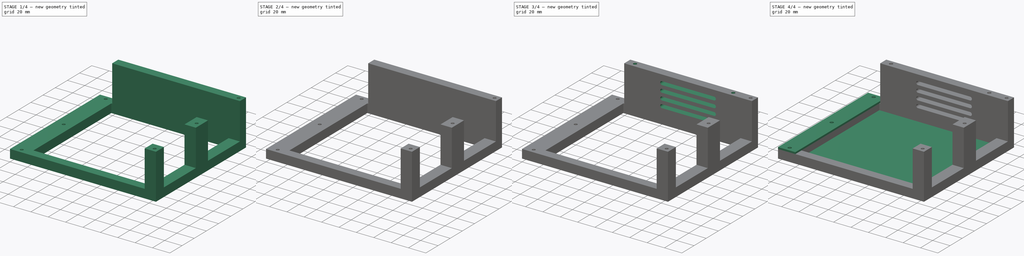
[diagram: build sequence overview — one tinted view per stage of 4, left to right]
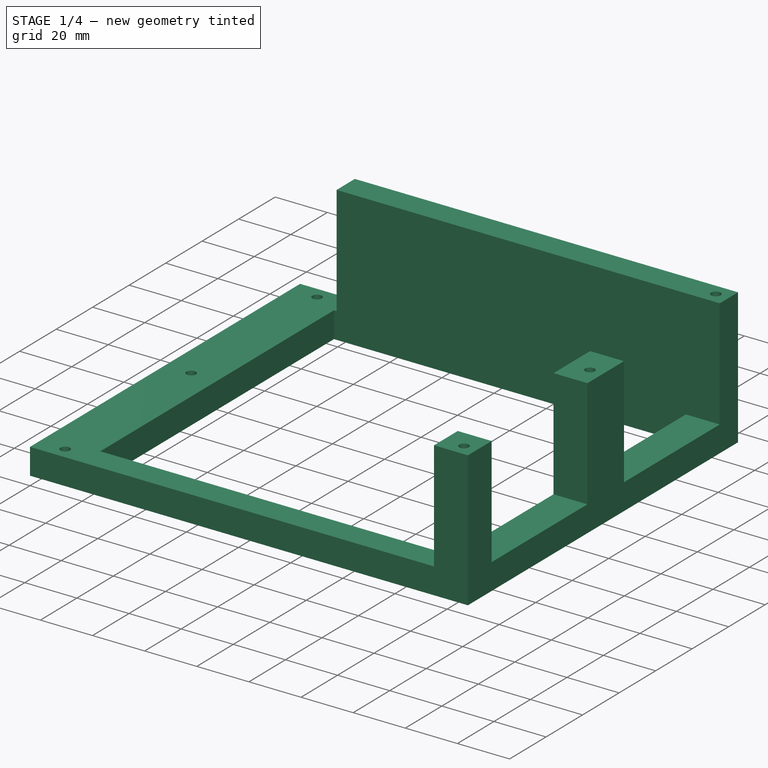
[diagram: stage 1 of 4 — iso view after this stage's code; geometry added in this stage tinted green]
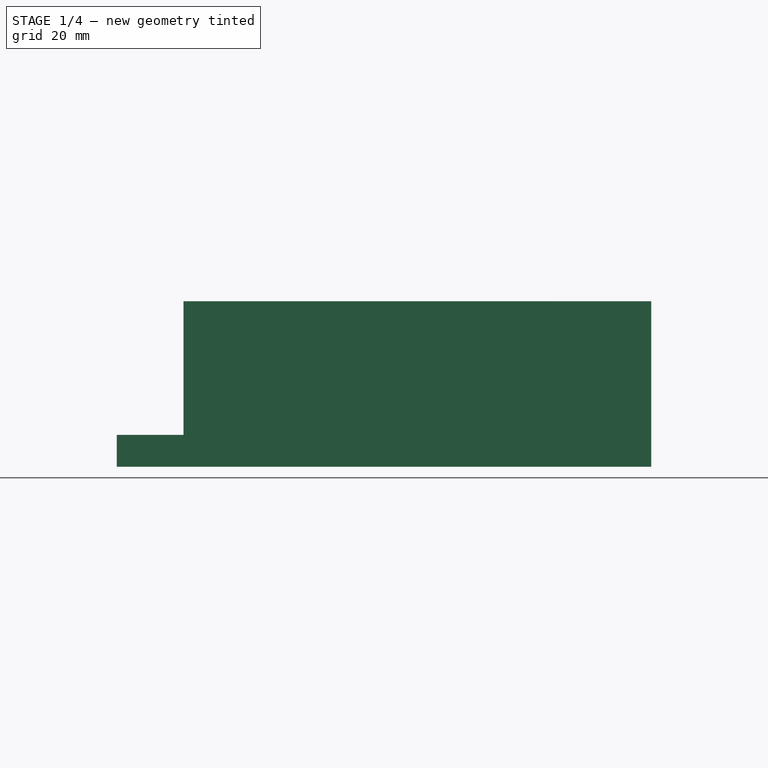
[diagram: stage 1 of 4 — front view after this stage's code; geometry added in this stage tinted green]
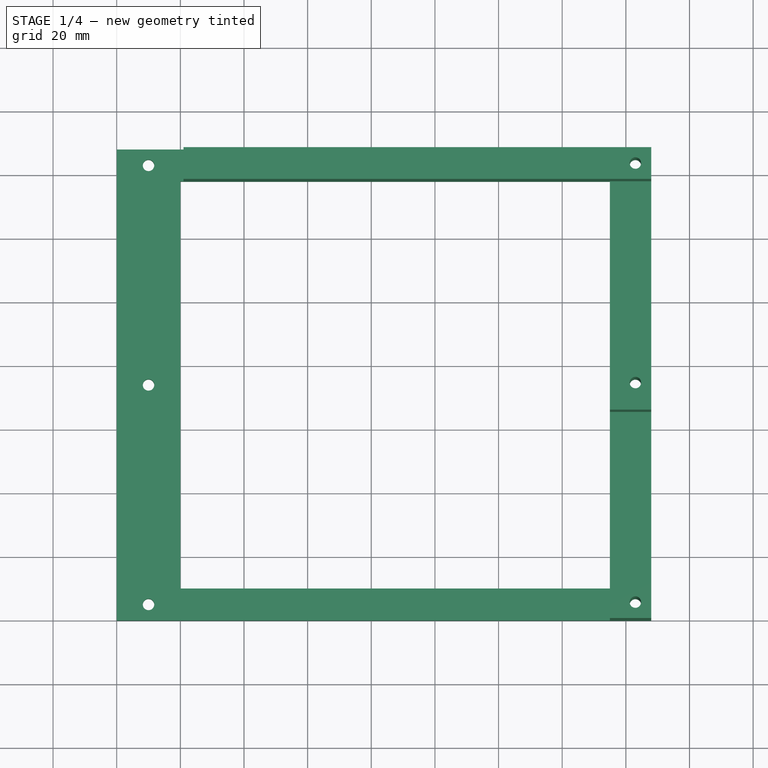
[diagram: stage 1 of 4 — top view after this stage's code; geometry added in this stage tinted green]
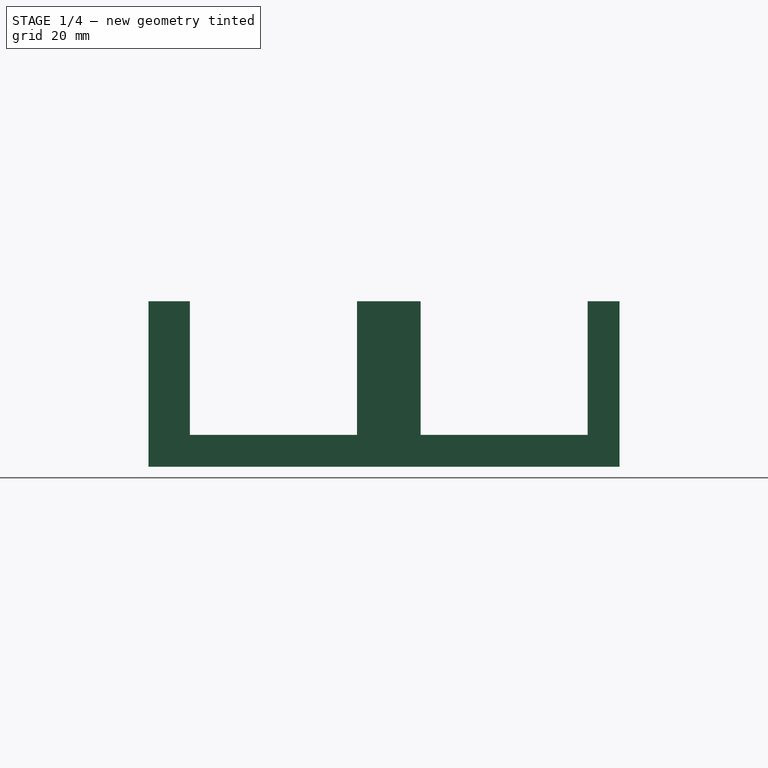
[diagram: stage 1 of 4 — right view after this stage's code; geometry added in this stage tinted green]
FCSTD DOCUMENT  (FreeCAD 0.19R24291 (Git))
Label: lower case enclosure
License: All rights reserved
LicenseURL: http://en.wikipedia.org/wiki/All_rights_reserved
objects: Sketcher::SketchObject×11, PartDesign::Pocket×6, PartDesign::Pad×5, PartDesign::Body×3
note: 36 computed .brp shape members not serialized (recipe doc carries the construction recipe); baked Part::Feature solids carry a one-line shape summary decoded from their .brp

FEATURE [Sketcher::SketchObject] Sketch
  FullyConstrained = true
  MapMode = 5
  Support = -> [XY_Plane]
  sketch-geometry (8):
    g0: LineSegment StartX=0 StartY=0 StartZ=0 EndX=168 EndY=0 EndZ=0
    g1: LineSegment StartX=168 StartY=0 StartZ=0 EndX=168 EndY=148 EndZ=0
    g2: LineSegment StartX=168 StartY=148 StartZ=0 EndX=0 EndY=148 EndZ=0
    g3: LineSegment StartX=0 StartY=148 StartZ=0 EndX=0 EndY=0 EndZ=0
    g4: LineSegment StartX=20 StartY=138 StartZ=0 EndX=155 EndY=138 EndZ=0
    g5: LineSegment StartX=155 StartY=138 StartZ=0 EndX=155 EndY=10 EndZ=0
    g6: LineSegment StartX=155 StartY=10 StartZ=0 EndX=20 EndY=10 EndZ=0
    g7: LineSegment StartX=20 StartY=10 StartZ=0 EndX=20 EndY=138 EndZ=0
  constraints (23):
    c: Coincident(g0,g1)
    c: Coincident(g1,g2)
    c: Coincident(g2,g3)
    c: Coincident(g3,g0)
    c: Horizontal(g0)
    c: Horizontal(g2)
    c: Vertical(g1)
    c: Vertical(g3)
    c: Coincident(g0,g-1)
    c: DistanceX(g0,g0) = 168
    c: DistanceY(g1,g1) = 148
    c: Coincident(g4,g5)
    c: Coincident(g5,g6)
    c: Coincident(g6,g7)
    c: Coincident(g7,g4)
    c: Horizontal(g4)
    c: Horizontal(g6)
    c: Vertical(g5)
    c: Vertical(g7)
    c: DistanceX(g5,g0) = 13
    c: DistanceY(g0,g5) = 10
    c: DistanceY(g4,g1) = 10
    c: DistanceX(g0,g6) = 20
FEATURE [PartDesign::Pad] Pad
  Direction = (1,1,1)
  Length = 10
  Length2 = 100
  Profile = -> Sketch
  Type = 0
FEATURE [Sketcher::SketchObject] Sketch001
  ExternalGeometry = -> [Pad]
  FullyConstrained = true
  MapMode = 5
  Placement = pos=(0,0,10) rot=(0,0,1;0rad)
  Support = -> [Pad]
  sketch-geometry (12):
    g0: LineSegment StartX=168 StartY=148 StartZ=0 EndX=21 EndY=148 EndZ=0
    g1: LineSegment StartX=21 StartY=148 StartZ=0 EndX=21 EndY=138 EndZ=0
    g2: LineSegment StartX=21 StartY=138 StartZ=0 EndX=168 EndY=138 EndZ=0
    g3: LineSegment StartX=168 StartY=138 StartZ=0 EndX=168 EndY=148 EndZ=0
    g4: LineSegment StartX=168 StartY=0 StartZ=0 EndX=155 EndY=0 EndZ=0
    g5: LineSegment StartX=155 StartY=0 StartZ=0 EndX=155 EndY=13 EndZ=0
    g6: LineSegment StartX=155 StartY=13 StartZ=0 EndX=168 EndY=13 EndZ=0
    g7: LineSegment StartX=168 StartY=13 StartZ=0 EndX=168 EndY=0 EndZ=0
    g8: LineSegment StartX=168 StartY=85.5 StartZ=0 EndX=155 EndY=85.5 EndZ=0
    g9: LineSegment StartX=155 StartY=85.5 StartZ=0 EndX=155 EndY=65.5 EndZ=0
    g10: LineSegment StartX=155 StartY=65.5 StartZ=0 EndX=168 EndY=65.5 EndZ=0
    g11: LineSegment StartX=168 StartY=65.5 StartZ=0 EndX=168 EndY=85.5 EndZ=0
  constraints (34):
    c: Coincident(g0,g1)
    c: Coincident(g1,g2)
    c: Coincident(g2,g3)
    c: Coincident(g3,g0)
    c: Horizontal(g0)
    c: Horizontal(g2)
    c: Vertical(g1)
    c: Vertical(g3)
    c: Coincident(g0,g-5)
    c: PointOnObject(g1,g-3)
    c: DistanceX(g0,g0) = 147
    c: Coincident(g4,g5)
    c: Coincident(g5,g6)
    c: Coincident(g6,g7)
    c: Coincident(g7,g4)
    c: Horizontal(g4)
    c: Horizontal(g6)
    c: Vertical(g5)
    c: Vertical(g7)
    c: Coincident(g4,g-5)
    c: PointOnObject(g-4,g5)
    c: DistanceY(g7,g7) = 13
    c: Coincident(g8,g9)
    c: Coincident(g9,g10)
    c: Coincident(g10,g11)
    c: Coincident(g11,g8)
    c: Horizontal(g8)
    c: Horizontal(g10)
    c: Vertical(g9)
    c: Vertical(g11)
    c: PointOnObject(g8,g-5)
    c: PointOnObject(g9,g-6)
    c: DistanceY(g11,g11) = 20
    c: DistanceY(g6,g10) = 52.5
FEATURE [PartDesign::Pad] Pad001
  BaseFeature = -> Pad
  Direction = (1,1,1)
  Length = 42
  Length2 = 100
  Profile = -> Sketch001
  Type = 0
FEATURE [Sketcher::SketchObject] Sketch002
  ExternalGeometry = -> [Pad001]
  FullyConstrained = true
  MapMode = 5
  Placement = pos=(0,0,0) rot=(1,0,0;3.14159rad)
  Support = -> [Pad001]
  sketch-geometry (6):
    g0: Circle CenterX=10 CenterY=-143 CenterZ=0 NormalX=0 NormalY=0 NormalZ=1 AngleXU=0 Radius=1.8
    g1: Circle CenterX=10 CenterY=-74 CenterZ=0 NormalX=0 NormalY=0 NormalZ=1 AngleXU=0 Radius=1.8
    g2: Circle CenterX=10 CenterY=-5 CenterZ=0 NormalX=0 NormalY=0 NormalZ=1 AngleXU=0 Radius=1.8
    g3: Circle CenterX=163 CenterY=-143 CenterZ=0 NormalX=0 NormalY=0 NormalZ=1 AngleXU=0 Radius=1.8
    g4: Circle CenterX=163 CenterY=-74 CenterZ=0 NormalX=0 NormalY=0 NormalZ=1 AngleXU=0 Radius=1.8
    g5: Circle CenterX=163 CenterY=-5 CenterZ=0 NormalX=0 NormalY=0 NormalZ=1 AngleXU=0 Radius=1.8
  constraints (16):
    c: Radius(g0) = 1.8
    c: DistanceY(g-3,g0) = 5
    c: DistanceX(g-3,g0) = 10
    c: Equal(g0,g1) = 1.8
    c: Equal(g0,g2) = 1.8
    c: DistanceY(g2,g-1) = 5
    c: Vertical(g0,g1)
    c: Symmetric(g0,g2,g1)
    c: Equal(g0,g3) = 1.8
    c: Equal(g3,g4) = 1.8
    c: Equal(g3,g5) = 1.8
    c: Vertical(g3,g4)
    c: Symmetric(g3,g5,g4)
    c: DistanceY(g5,g-4) = 5
    c: DistanceX(g5,g-4) = 5
    c: DistanceY(g-4,g3) = 5
FEATURE [PartDesign::Pocket] Pocket
  BaseFeature = -> Pad001
  Length = 55
  Length2 = 100
  Profile = -> Sketch002
  Type = 0
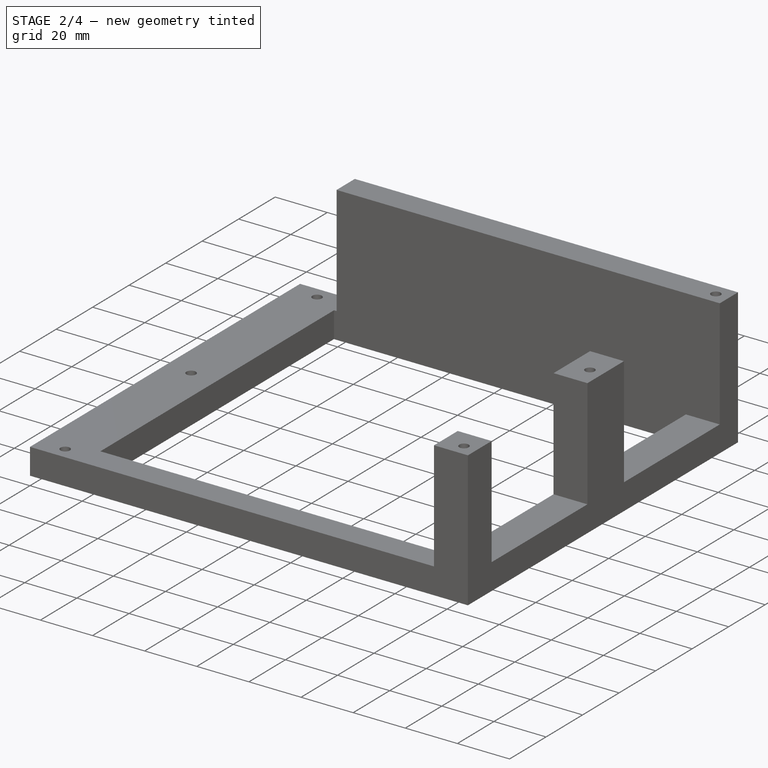
[diagram: stage 2 of 4 — iso view after this stage's code; geometry added in this stage tinted green]
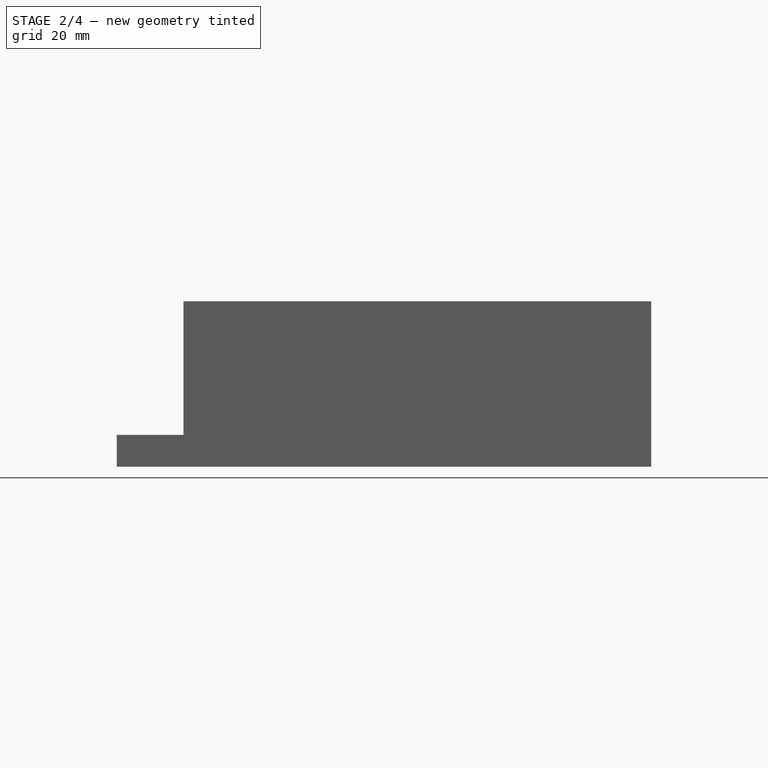
[diagram: stage 2 of 4 — front view after this stage's code; geometry added in this stage tinted green]
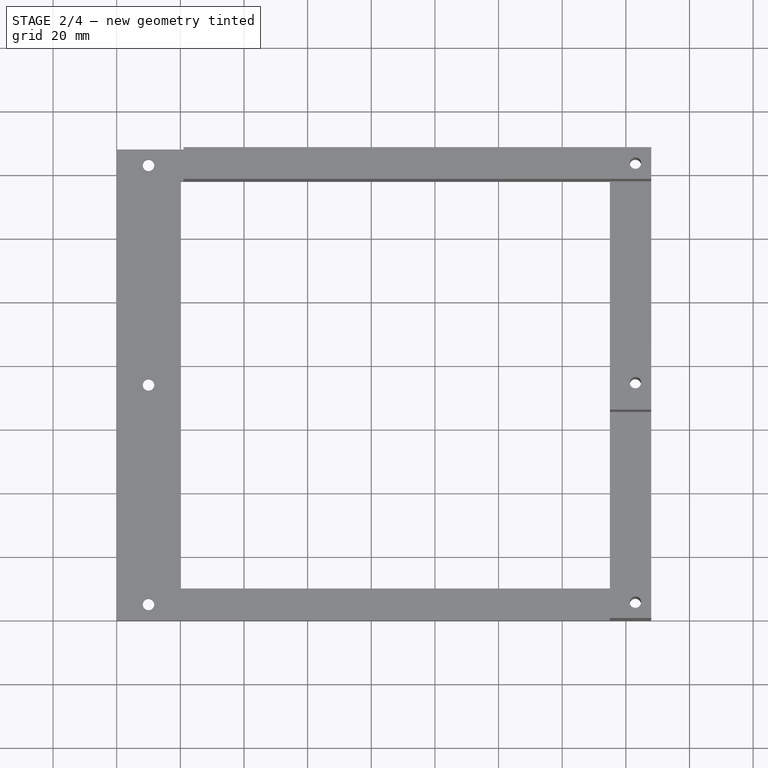
[diagram: stage 2 of 4 — top view after this stage's code; geometry added in this stage tinted green]
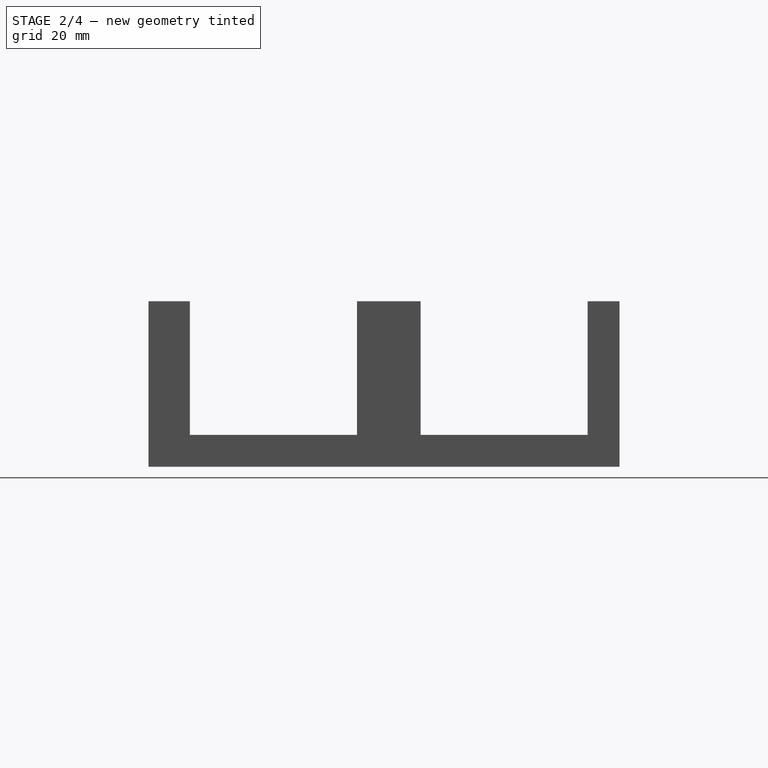
[diagram: stage 2 of 4 — right view after this stage's code; geometry added in this stage tinted green]
FEATURE [Sketcher::SketchObject] Sketch003
  ExternalGeometry = -> [Pocket]
  FullyConstrained = true
  MapMode = 5
  Placement = pos=(0,0,0) rot=(1,0,0;3.14159rad)
  Support = -> [Pocket]
  sketch-geometry (3):
    g0: Circle CenterX=10 CenterY=-5 CenterZ=0 NormalX=0 NormalY=0 NormalZ=1 AngleXU=0 Radius=3
    g1: Circle CenterX=10 CenterY=-74 CenterZ=0 NormalX=0 NormalY=0 NormalZ=1 AngleXU=0 Radius=3
    g2: Circle CenterX=10 CenterY=-143 CenterZ=0 NormalX=0 NormalY=0 NormalZ=1 AngleXU=0 Radius=3
  constraints (6):
    c: Coincident(g0,g-3)
    c: Coincident(g1,g-4)
    c: Coincident(g2,g-5)
    c: Radius(g2) = 3
    c: Equal(g2,g1)
    c: Equal(g1,g0)
FEATURE [PartDesign::Pocket] Pocket001
  BaseFeature = -> Pocket
  Length = 4
  Length2 = 100
  Profile = -> Sketch003
  Type = 0
FEATURE [Sketcher::SketchObject] Sketch004
  ExternalGeometry = -> [Pocket001]
  FullyConstrained = true
  MapMode = 5
  Placement = pos=(0,0,0) rot=(1,0,0;3.14159rad)
  Support = -> [Pocket001]
  sketch-geometry (3):
    g0: Circle CenterX=163 CenterY=-5 CenterZ=0 NormalX=0 NormalY=0 NormalZ=1 AngleXU=0 Radius=3
    g1: Circle CenterX=163 CenterY=-74 CenterZ=0 NormalX=0 NormalY=0 NormalZ=1 AngleXU=0 Radius=3
    g2: Circle CenterX=163 CenterY=-143 CenterZ=0 NormalX=0 NormalY=0 NormalZ=1 AngleXU=0 Radius=3
  constraints (6):
    c: Coincident(g0,g-3)
    c: Coincident(g1,g-4)
    c: Coincident(g2,g-5)
    c: Radius(g0) = 3
    c: Equal(g0,g1)
    c: Equal(g1,g2)
FEATURE [PartDesign::Pocket] Pocket002
  BaseFeature = -> Pocket001
  Length = 6
  Length2 = 100
  Profile = -> Sketch004
  Type = 0
FEATURE [Sketcher::SketchObject] Sketch005
  ExternalGeometry = -> [Pocket002]
  FullyConstrained = true
  MapMode = 5
  Placement = pos=(0,0,0) rot=(1,0,0;3.14159rad)
  Support = -> [Pocket002]
  sketch-geometry (4):
    g0: Circle CenterX=10 CenterY=-25 CenterZ=0 NormalX=0 NormalY=0 NormalZ=1 AngleXU=0 Radius=2
    g1: Circle CenterX=163 CenterY=-25 CenterZ=0 NormalX=0 NormalY=0 NormalZ=1 AngleXU=0 Radius=2
    g2: Circle CenterX=10 CenterY=-123 CenterZ=0 NormalX=0 NormalY=0 NormalZ=1 AngleXU=0 Radius=2
    g3: Circle CenterX=163 CenterY=-123 CenterZ=0 NormalX=0 NormalY=0 NormalZ=1 AngleXU=0 Radius=2
  constraints (12):
    c: Vertical(g-3,g0)
    c: Radius(g0) = 2
    c: DistanceY(g0,g-3) = 20
    c: Equal(g0,g1) = 2
    c: Equal(g0,g2) = 2
    c: Equal(g0,g3) = 2
    c: Vertical(g-4,g1)
    c: Vertical(g1,g3)
    c: Vertical(g-3,g2)
    c: DistanceY(g-6,g2) = 20
    c: Horizontal(g2,g3)
    c: Horizontal(g0,g1)
FEATURE [PartDesign::Pocket] Pocket003
  BaseFeature = -> Pocket002
  Length = 7
  Length2 = 100
  Profile = -> Sketch005
  Type = 0
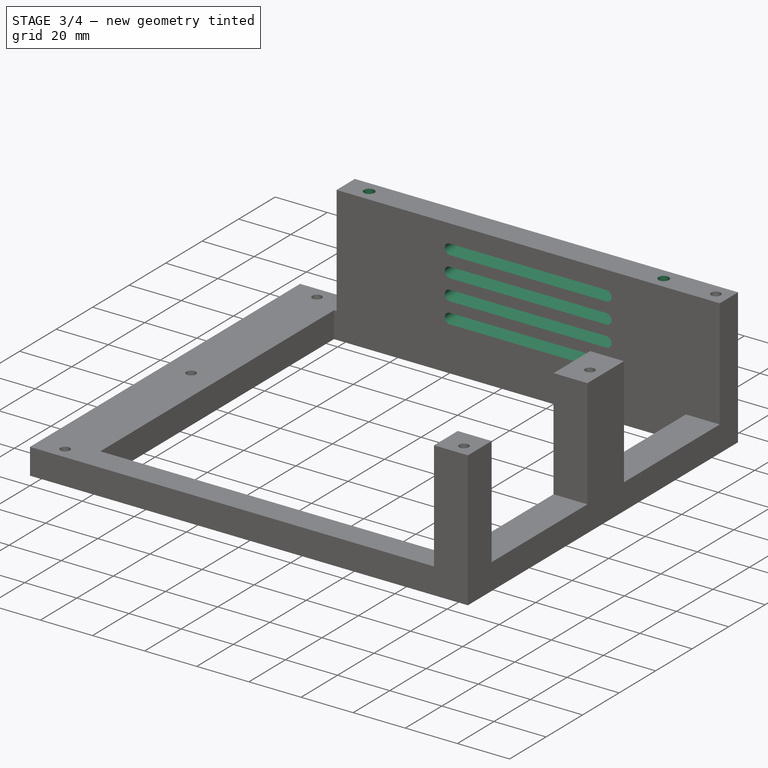
[diagram: stage 3 of 4 — iso view after this stage's code; geometry added in this stage tinted green]
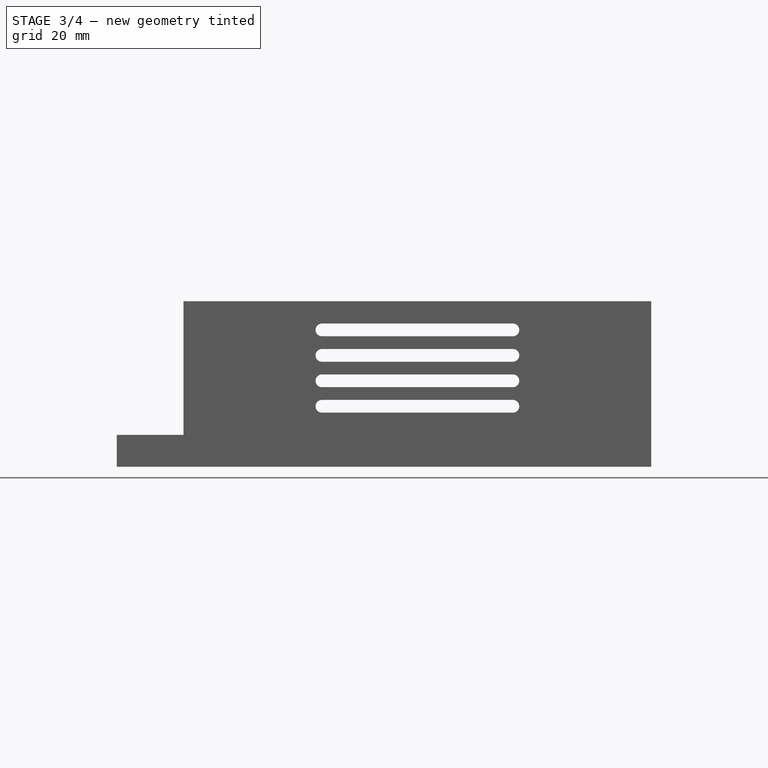
[diagram: stage 3 of 4 — front view after this stage's code; geometry added in this stage tinted green]
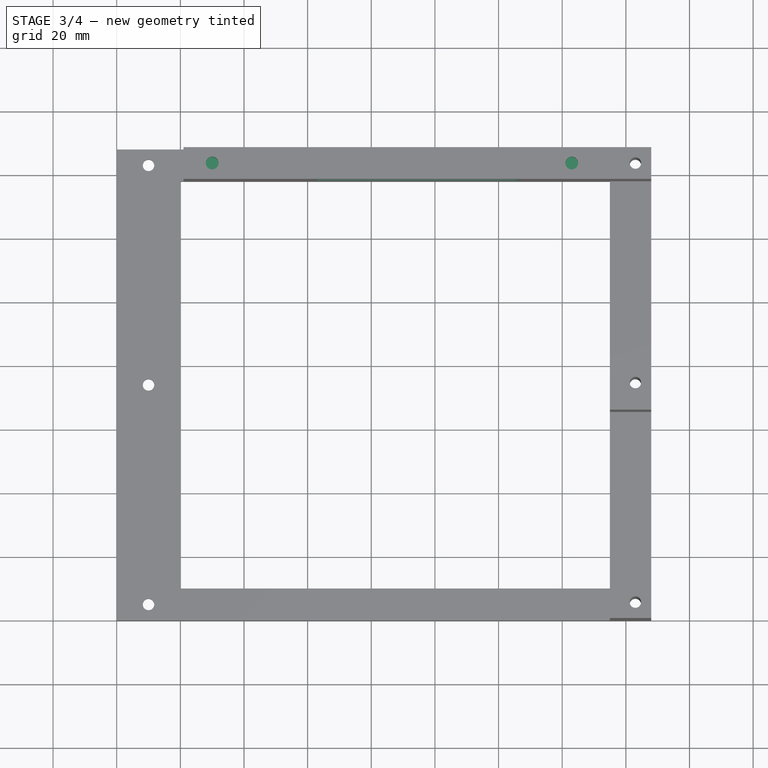
[diagram: stage 3 of 4 — top view after this stage's code; geometry added in this stage tinted green]
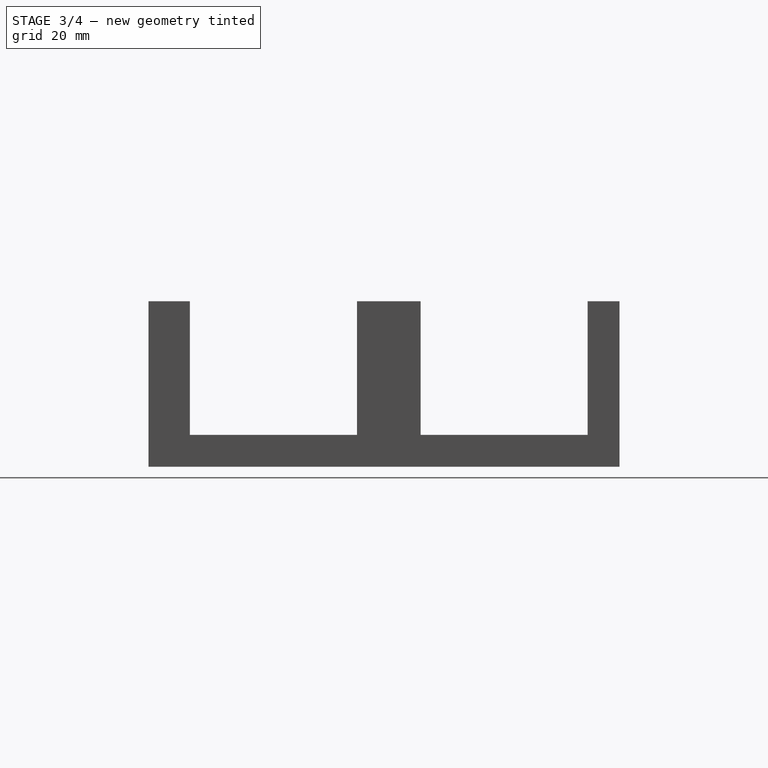
[diagram: stage 3 of 4 — right view after this stage's code; geometry added in this stage tinted green]
FEATURE [Sketcher::SketchObject] Sketch006
  ExternalGeometry = -> [Pocket003]
  FullyConstrained = true
  MapMode = 5
  Placement = pos=(0,0,52) rot=(0,0,1;0rad)
  Support = -> [Pocket003]
  sketch-geometry (2):
    g0: Circle CenterX=30 CenterY=143 CenterZ=0 NormalX=0 NormalY=0 NormalZ=1 AngleXU=0 Radius=2
    g1: Circle CenterX=143 CenterY=143 CenterZ=0 NormalX=0 NormalY=0 NormalZ=1 AngleXU=0 Radius=2
  constraints (6):
    c: Radius(g0) = 2
    c: Equal(g0,g1)
    c: Horizontal(g0,g1)
    c: Horizontal(g0,g-4)
    c: DistanceX(g-4,g0) = 20
    c: DistanceX(g1,g-5) = 20
FEATURE [PartDesign::Pocket] Pocket004
  BaseFeature = -> Pocket003
  Length = 7
  Length2 = 100
  Profile = -> Sketch006
  Type = 0
FEATURE [Sketcher::SketchObject] Sketch007
  ExternalGeometry = -> [Pocket004]
  FullyConstrained = true
  MapMode = 5
  Placement = pos=(0,148,0) rot=(0,0.707107,0.707107;3.14159rad)
  Support = -> [Pocket004]
  sketch-geometry (19):
    g0: ArcOfCircle CenterX=-124.5 CenterY=43 CenterZ=0 NormalX=0 NormalY=0 NormalZ=1 AngleXU=0 Radius=2 StartAngle=1.5708 EndAngle=4.71239
    g1: ArcOfCircle CenterX=-64.5 CenterY=43 CenterZ=0 NormalX=0 NormalY=0 NormalZ=1 AngleXU=0 Radius=2 StartAngle=4.71239 EndAngle=7.85398
    g2: LineSegment StartX=-124.5 StartY=41 StartZ=0 EndX=-64.5 EndY=41 EndZ=0
    g3: LineSegment StartX=-124.5 StartY=45 StartZ=0 EndX=-64.5 EndY=45 EndZ=0
    g4: ArcOfCircle CenterX=-124.5 CenterY=35 CenterZ=0 NormalX=0 NormalY=0 NormalZ=1 AngleXU=0 Radius=2 StartAngle=1.5708 EndAngle=4.71239
    g5: ArcOfCircle CenterX=-64.5 CenterY=35 CenterZ=0 NormalX=0 NormalY=0 NormalZ=1 AngleXU=0 Radius=2 StartAngle=4.71239 EndAngle=7.85398
    g6: LineSegment StartX=-124.5 StartY=33 StartZ=0 EndX=-64.5 EndY=33 EndZ=0
    g7: LineSegment StartX=-124.5 StartY=37 StartZ=0 EndX=-64.5 EndY=37 EndZ=0
    g8: LineSegment StartX=-124.5 StartY=45 StartZ=0 EndX=-124.5 EndY=37 EndZ=0
    g9: ArcOfCircle CenterX=-124.5 CenterY=27 CenterZ=0 NormalX=0 NormalY=0 NormalZ=1 AngleXU=0 Radius=2 StartAngle=1.5708 EndAngle=4.71239
    g10: ArcOfCircle CenterX=-64.5 CenterY=27 CenterZ=0 NormalX=0 NormalY=0 NormalZ=1 AngleXU=0 Radius=2 StartAngle=4.71239 EndAngle=7.85398
    g11: LineSegment StartX=-124.5 StartY=25 StartZ=0 EndX=-64.5 EndY=25 EndZ=0
    g12: LineSegment StartX=-124.5 StartY=29 StartZ=0 EndX=-64.5 EndY=29 EndZ=0
    g13: LineSegment StartX=-124.5 StartY=37 StartZ=0 EndX=-124.5 EndY=29 EndZ=0
    g14: ArcOfCircle CenterX=-124.5 CenterY=19 CenterZ=0 NormalX=0 NormalY=0 NormalZ=1 AngleXU=0 Radius=2 StartAngle=1.5708 EndAngle=4.71239
    g15: ArcOfCircle CenterX=-64.5 CenterY=19 CenterZ=0 NormalX=0 NormalY=0 NormalZ=1 AngleXU=0 Radius=2 StartAngle=4.71239 EndAngle=7.85398
    g16: LineSegment StartX=-124.5 StartY=17 StartZ=0 EndX=-64.5 EndY=17 EndZ=0
    g17: LineSegment StartX=-124.5 StartY=21 StartZ=0 EndX=-64.5 EndY=21 EndZ=0
    g18: LineSegment StartX=-124.5 StartY=29 StartZ=0 EndX=-124.5 EndY=21 EndZ=0
  constraints (46):
    c: Tangent(g0,g3) = 1.5708
    c: Tangent(g0,g2) = -1.5708
    c: Tangent(g2,g1) = -1.5708
    c: Tangent(g3,g1) = 1.5708
    c: Horizontal(g2)
    c: Equal(g0,g1)
    c: DistanceY(g1,g1) = 4
    c: Tangent(g4,g7) = 1.5708
    c: Tangent(g4,g6) = -1.5708
    c: Tangent(g6,g5) = -1.5708
    c: Tangent(g7,g5) = 1.5708
    c: Horizontal(g6)
    c: Equal(g4,g5)
    c: DistanceY(g5,g5) = 4
    c: Coincident(g0,g8)
    c: Coincident(g4,g8)
    c: Distance(g8) = 8
    c: Angle(g8) = -1.5708
    c: Tangent(g9,g12) = 1.5708
    c: Tangent(g9,g11) = -1.5708
    c: Tangent(g11,g10) = -1.5708
    c: Tangent(g12,g10) = 1.5708
    c: Horizontal(g11)
    c: Equal(g9,g10)
    c: DistanceY(g10,g10) = 4
    c: Coincident(g4,g13)
    c: Coincident(g9,g13)
    c: Equal(g8,g13)
    c: Parallel(g13,g8)
    c: Tangent(g14,g17) = 1.5708
    c: Tangent(g14,g16) = -1.5708
    c: Tangent(g16,g15) = -1.5708
    c: Tangent(g17,g15) = 1.5708
    c: Horizontal(g16)
    c: Equal(g14,g15)
    c: DistanceY(g15,g15) = 4
    c: Coincident(g9,g18)
    c: Coincident(g14,g18)
    c: Equal(g8,g18)
    c: Parallel(g18,g8)
    c: Vertical(g1,g5)
    c: Vertical(g5,g10)
    c: Vertical(g10,g15)
    c: DistanceX(g3,g3) = 60
    c: DistanceX(g-3,g0) = 43.5
    c: DistanceY(g0,g-3) = 7
FEATURE [PartDesign::Pocket] Pocket005
  BaseFeature = -> Pocket004
  Length = 10
  Length2 = 100
  Profile = -> Sketch007
  Type = 0
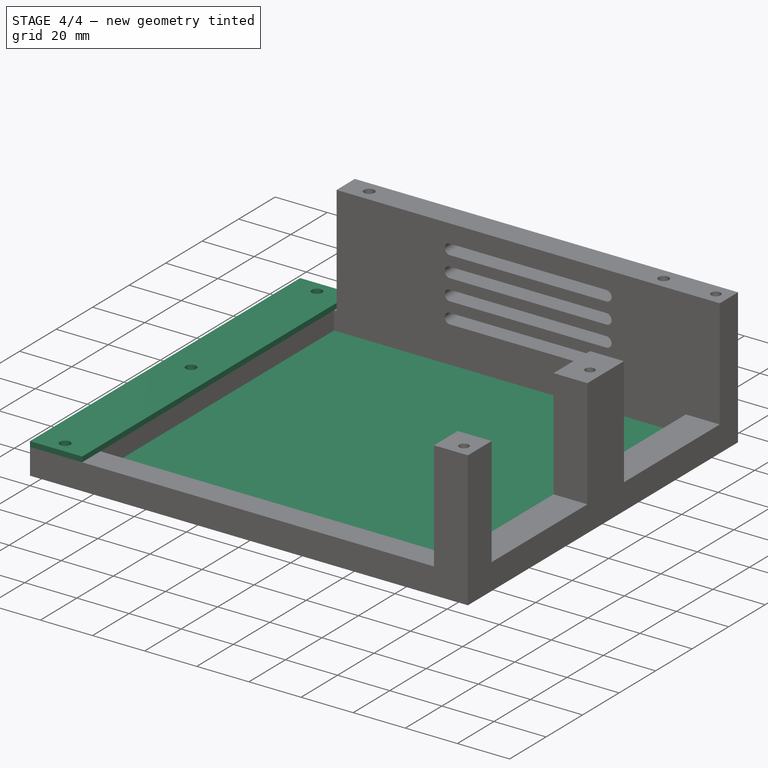
[diagram: stage 4 of 4 — iso view after this stage's code; geometry added in this stage tinted green]
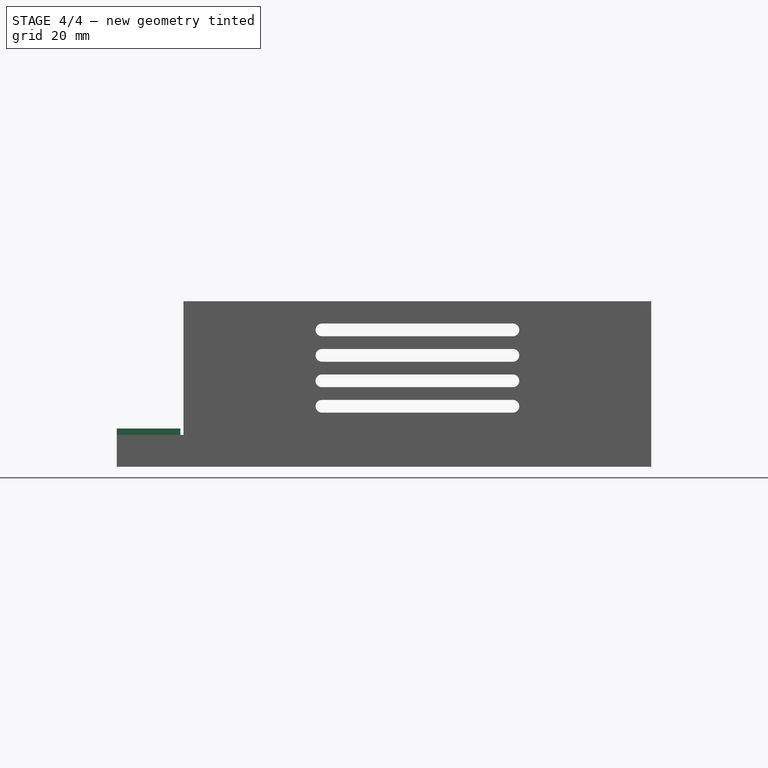
[diagram: stage 4 of 4 — front view after this stage's code; geometry added in this stage tinted green]
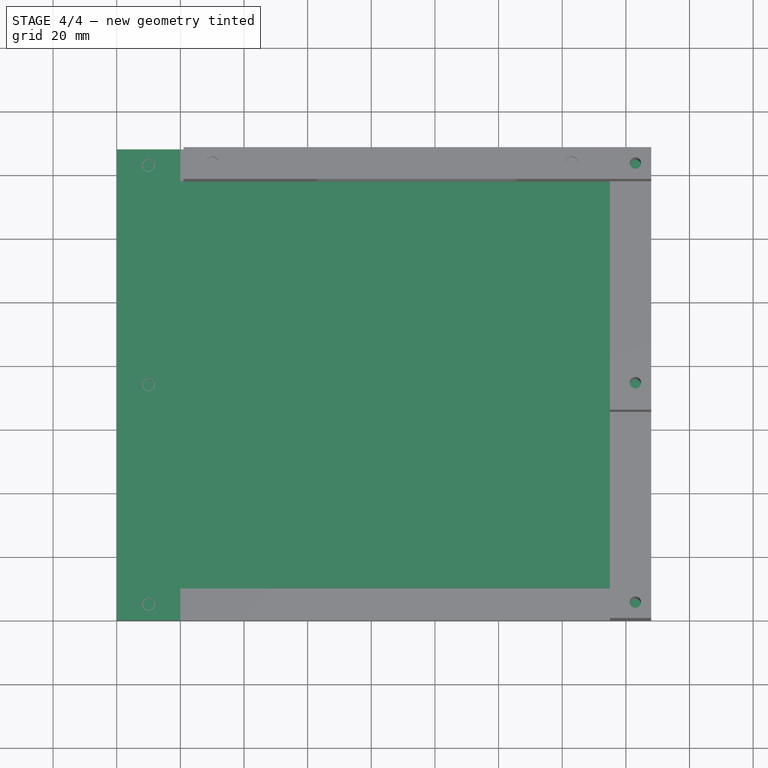
[diagram: stage 4 of 4 — top view after this stage's code; geometry added in this stage tinted green]
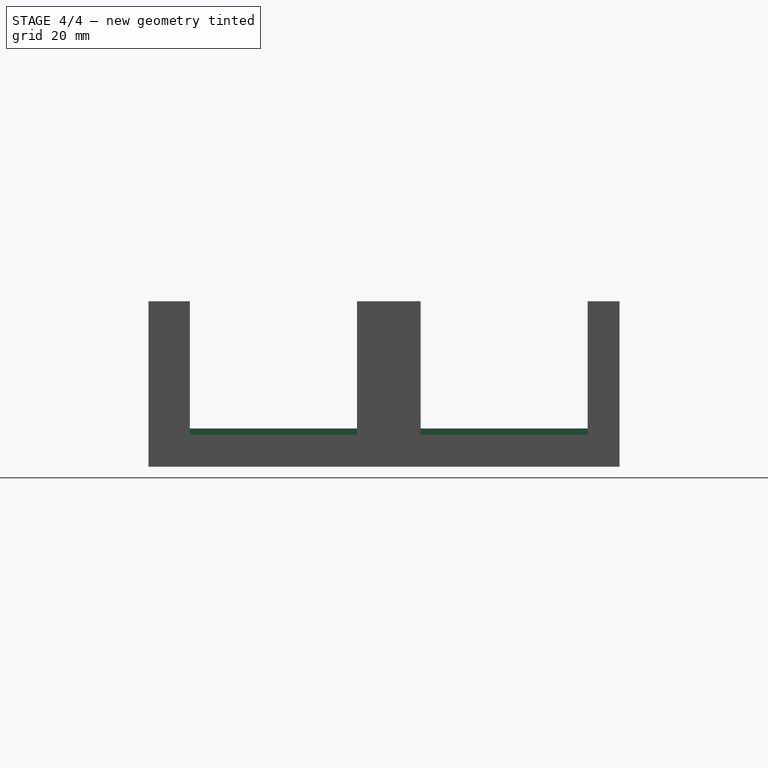
[diagram: stage 4 of 4 — right view after this stage's code; geometry added in this stage tinted green]
FEATURE [Sketcher::SketchObject] Sketch008
  ExternalGeometry = -> [Pocket005]
  FullyConstrained = true
  MapMode = 5
  Placement = pos=(0,0,10) rot=(0,0,1;0rad)
  Support = -> [Pocket005]
  sketch-geometry (7):
    g0: LineSegment StartX=0 StartY=0 StartZ=0 EndX=20 EndY=0 EndZ=0
    g1: LineSegment StartX=20 StartY=0 StartZ=0 EndX=20 EndY=148 EndZ=0
    g2: LineSegment StartX=20 StartY=148 StartZ=0 EndX=0 EndY=148 EndZ=0
    g3: LineSegment StartX=0 StartY=148 StartZ=0 EndX=0 EndY=0 EndZ=0
    g4: Circle CenterX=10 CenterY=5 CenterZ=0 NormalX=0 NormalY=0 NormalZ=1 AngleXU=0 Radius=2
    g5: Circle CenterX=10 CenterY=74 CenterZ=0 NormalX=0 NormalY=0 NormalZ=1 AngleXU=0 Radius=2
    g6: Circle CenterX=10 CenterY=143 CenterZ=0 NormalX=0 NormalY=0 NormalZ=1 AngleXU=0 Radius=2
  constraints (15):
    c: Coincident(g0,g1)
    c: Coincident(g1,g2)
    c: Coincident(g2,g3)
    c: Coincident(g3,g0)
    c: Horizontal(g0)
    c: Horizontal(g2)
    c: Coincident(g0,g-1)
    c: Tangent(g1,g-4)
    c: Coincident(g2,g-3)
    c: Coincident(g4,g-7)
    c: Coincident(g5,g-6)
    c: Coincident(g6,g-5)
    c: Radius(g6) = 2
    c: Equal(g6,g5)
    c: Equal(g5,g4)
FEATURE [PartDesign::Pad] Pad002
  BaseFeature = -> Pocket005
  Direction = (1,1,1)
  Length = 2
  Length2 = 100
  Profile = -> Sketch008
  Type = 0
FEATURE [PartDesign::Body] Body
  Group = -> [Sketch,Pad,Sketch001,Pad001,Sketch002,Pocket,Sketch003,Pocket001,Sketch004,Pocket002,Sketch005,Pocket003,Sketch006,Pocket004,Sketch007,Pocket005,Sketch008,Pad002]
  Origin = -> Origin
  Tip = -> Pad002
FEATURE [Sketcher::SketchObject] Sketch009
  FullyConstrained = true
  MapMode = 5
  Support = -> [XY_Plane001]
  sketch-geometry (8):
    g0: LineSegment StartX=0 StartY=0 StartZ=0 EndX=168 EndY=0 EndZ=0
    g1: LineSegment StartX=168 StartY=0 StartZ=0 EndX=168 EndY=148 EndZ=0
    g2: LineSegment StartX=168 StartY=148 StartZ=0 EndX=0 EndY=148 EndZ=0
    g3: LineSegment StartX=0 StartY=148 StartZ=0 EndX=0 EndY=0 EndZ=0
    g4: Circle CenterX=10 CenterY=25 CenterZ=0 NormalX=0 NormalY=0 NormalZ=1 AngleXU=0 Radius=2
    g5: Circle CenterX=163 CenterY=25 CenterZ=0 NormalX=0 NormalY=0 NormalZ=1 AngleXU=0 Radius=2
    g6: Circle CenterX=10 CenterY=123 CenterZ=0 NormalX=0 NormalY=0 NormalZ=1 AngleXU=0 Radius=2
    g7: Circle CenterX=163 CenterY=123 CenterZ=0 NormalX=0 NormalY=0 NormalZ=1 AngleXU=0 Radius=2
  constraints (23):
    c: Coincident(g0,g1)
    c: Coincident(g1,g2)
    c: Coincident(g2,g3)
    c: Coincident(g3,g0)
    c: Horizontal(g0)
    c: Horizontal(g2)
    c: Vertical(g1)
    c: Vertical(g3)
    c: DistanceY(g1,g1) = 148
    c: DistanceX(g2,g2) = 168
    c: Coincident(g0,g-1)
    c: Radius(g6) = 2
    c: Equal(g6,g4)
    c: Equal(g4,g5)
    c: Equal(g5,g7)
    c: Horizontal(g4,g5)
    c: Horizontal(g6,g7)
    c: Vertical(g6,g4)
    c: Vertical(g5,g7)
    c: DistanceY(g0,g4) = 25
    c: DistanceX(g0,g4) = 10
    c: DistanceY(g6,g2) = 25
    c: DistanceX(g7,g1) = 5
FEATURE [PartDesign::Pad] Pad003
  Direction = (1,1,1)
  Length = 3
  Length2 = 100
  Profile = -> Sketch009
  Type = 0
FEATURE [PartDesign::Body] Body001
  Group = -> [Sketch009,Pad003]
  Origin = -> Origin001
  Placement = pos=(0,0,-3) rot=(0,0,1;0rad)
  Tip = -> Pad003
FEATURE [Sketcher::SketchObject] Sketch010
  ExternalGeometry = -> [Pocket005]
  FullyConstrained = true
  Placement = pos=(0,0,10) rot=(0,0,1;0rad)
  sketch-geometry (7):
    g0: LineSegment StartX=0 StartY=0 StartZ=0 EndX=20 EndY=0 EndZ=0
    g1: LineSegment StartX=20 StartY=0 StartZ=0 EndX=20 EndY=148 EndZ=0
    g2: LineSegment StartX=20 StartY=148 StartZ=0 EndX=0 EndY=148 EndZ=0
    g3: LineSegment StartX=0 StartY=148 StartZ=0 EndX=0 EndY=0 EndZ=0
    g4: Circle CenterX=10 CenterY=5 CenterZ=0 NormalX=0 NormalY=0 NormalZ=1 AngleXU=0 Radius=2
    g5: Circle CenterX=10 CenterY=74 CenterZ=0 NormalX=0 NormalY=0 NormalZ=1 AngleXU=0 Radius=2
    g6: Circle CenterX=10 CenterY=143 CenterZ=0 NormalX=0 NormalY=0 NormalZ=1 AngleXU=0 Radius=2
  constraints (15):
    c: Coincident(g0,g1)
    c: Coincident(g1,g2)
    c: Coincident(g2,g3)
    c: Coincident(g3,g0)
    c: Horizontal(g0)
    c: Horizontal(g2)
    c: Coincident(g0,g-1)
    c: Tangent(g1,g-4)
    c: Coincident(g2,g-3)
    c: Coincident(g4,g-7)
    c: Coincident(g5,g-6)
    c: Coincident(g6,g-5)
    c: Radius(g6) = 2
    c: Equal(g6,g5)
    c: Equal(g5,g4)
FEATURE [PartDesign::Pad] Pad004
  Direction = (1,1,1)
  Length = 2
  Length2 = 100
  Placement = pos=(0,0,10) rot=(0,0,1;0rad)
  Profile = -> Sketch010
  Type = 0
FEATURE [PartDesign::Body] Body002
  Group = -> [Sketch010,Pad004]
  Origin = -> Origin002
  Tip = -> Pad004
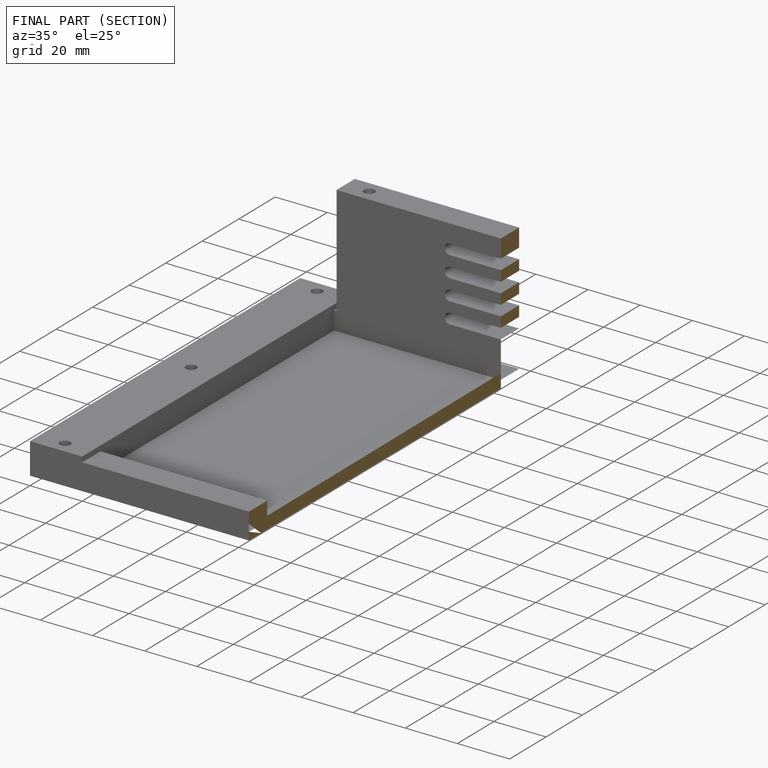
[diagram: finished part — half-section view (interior)]
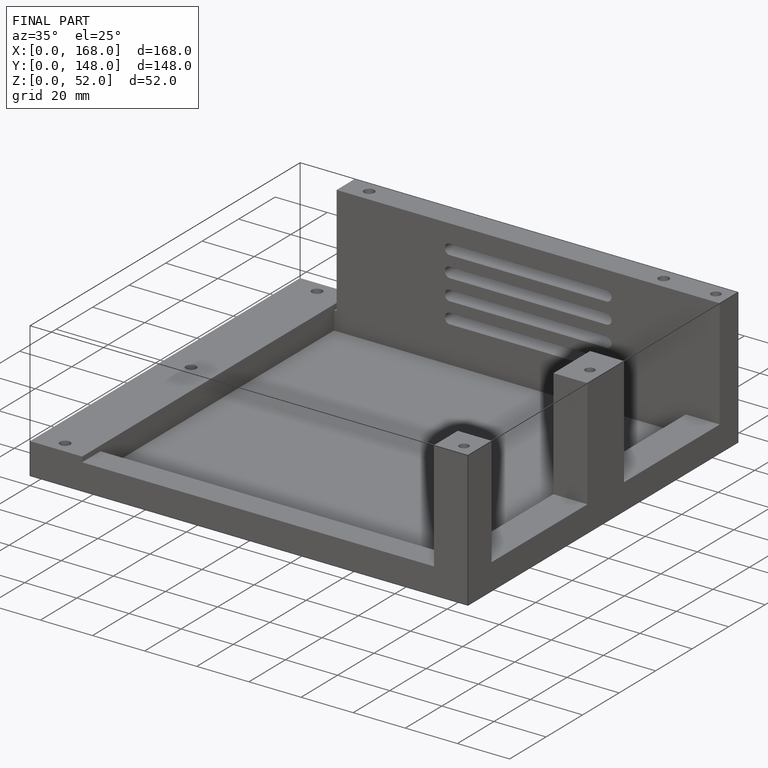
[diagram: finished part — iso view with bounding-box wireframe]
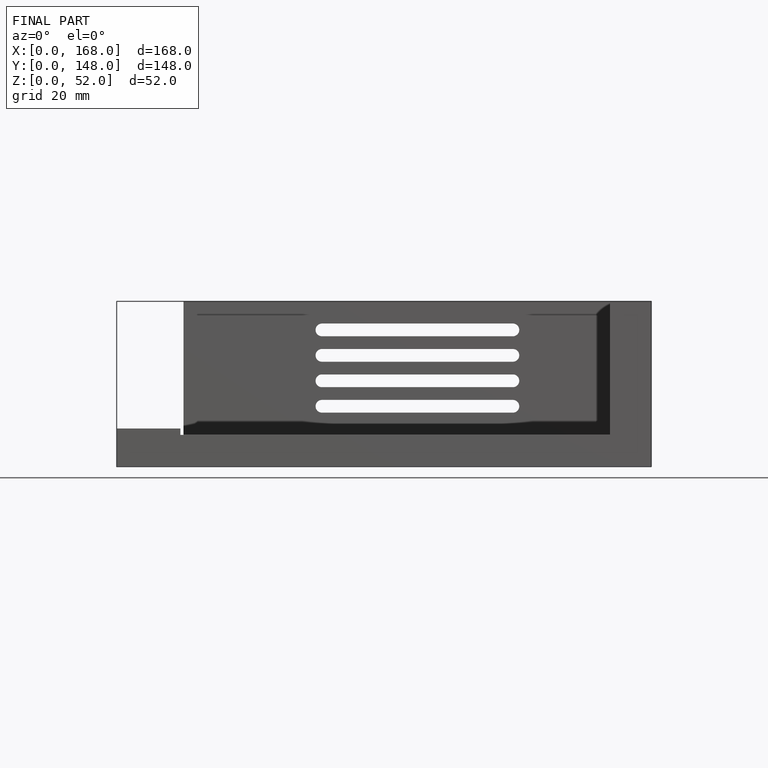
[diagram: finished part — front view with bounding-box wireframe]
